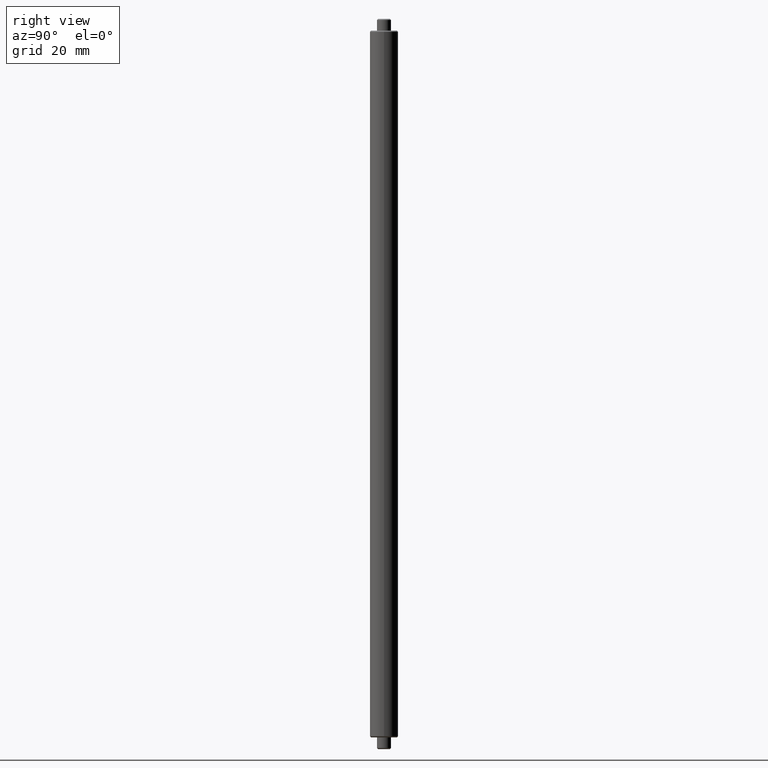
[diagram: clean part render]
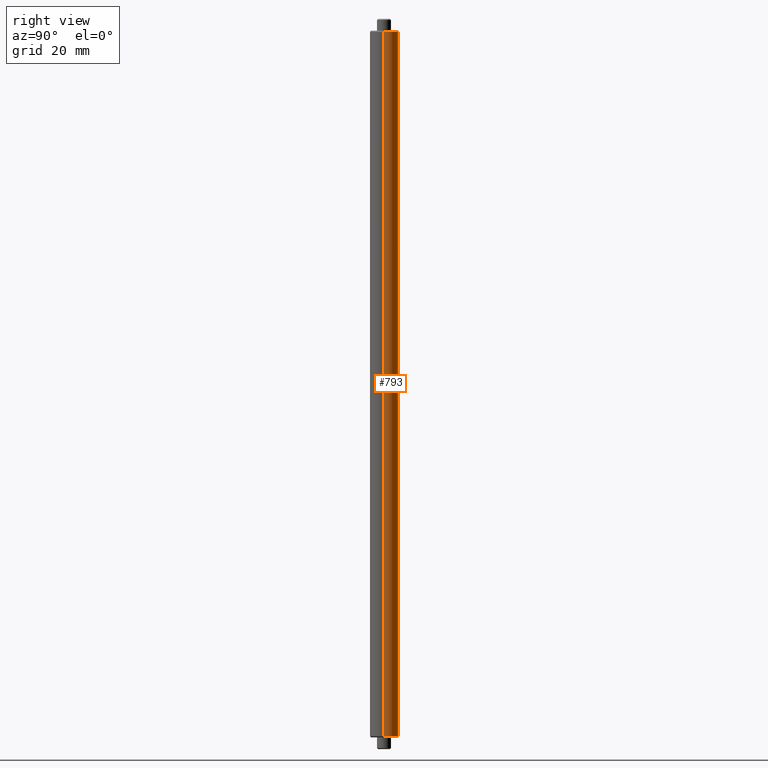
[diagram: same view with one face highlighted and labeled with its STEP entity id]
A machine part, right view. The second image highlights one B-rep face of the part: STEP entity #793.
In plain terms, the highlighted cylindrical surface (edge-blend (fillet) strip) has radius 3 mm, axis along (-0, -0, -1).
Its self-contained STEP definition (entity closure, byte-faithful):
#37 = CIRCLE ( 'NONE', #467, 3.000000000000000444 ) ;
#83 = DIRECTION ( 'NONE',  ( -1.000000000000000000, 0.000000000000000000, 0.000000000000000000 ) ) ;
#85 = DIRECTION ( 'NONE',  ( -0.000000000000000000, -0.000000000000000000, -1.000000000000000000 ) ) ;
#117 = DIRECTION ( 'NONE',  ( 1.000000000000000000, 0.000000000000000000, 0.000000000000000000 ) ) ;
#135 = LINE ( 'NONE', #255, #569 ) ;
#151 = VERTEX_POINT ( 'NONE', #1049 ) ;
#173 = ORIENTED_EDGE ( 'NONE', *, *, #575, .T. ) ;
#186 = CARTESIAN_POINT ( 'NONE',  ( -3.000000000000000444, 0.000000000000000000, 74.74999999999998579 ) ) ;
#198 = ORIENTED_EDGE ( 'NONE', *, *, #1281, .T. ) ;
#255 = CARTESIAN_POINT ( 'NONE',  ( -3.000000000000000444, 0.000000000000000000, 75.00000000000000000 ) ) ;
#274 = ORIENTED_EDGE ( 'NONE', *, *, #1577, .F. ) ;
#362 = LINE ( 'NONE', #1236, #1106 ) ;
#430 = VERTEX_POINT ( 'NONE', #186 ) ;
#450 = VERTEX_POINT ( 'NONE', #1108 ) ;
#467 = AXIS2_PLACEMENT_3D ( 'NONE', #1048, #916, #1551 ) ;
#488 = DIRECTION ( 'NONE',  ( 0.000000000000000000, 0.000000000000000000, -1.000000000000000000 ) ) ;
#510 = VERTEX_POINT ( 'NONE', #669 ) ;
#569 = VECTOR ( 'NONE', #1405, 1000.000000000000000 ) ;
#575 = EDGE_CURVE ( 'NONE', #510, #450, #37, .T. ) ;
#617 = CIRCLE ( 'NONE', #1262, 3.000000000000000444 ) ;
#669 = CARTESIAN_POINT ( 'NONE',  ( 3.000000000000000444, 0.000000000000000000, -74.75000000000002842 ) ) ;
#731 = DIRECTION ( 'NONE',  ( -0.000000000000000000, -0.000000000000000000, -1.000000000000000000 ) ) ;
#777 = CYLINDRICAL_SURFACE ( 'NONE', #950, 3.000000000000000444 ) ;
#793 = ADVANCED_FACE ( 'NONE', ( #822 ), #777, .T. ) ;
#822 = FACE_OUTER_BOUND ( 'NONE', #1554, .T. ) ;
#916 = DIRECTION ( 'NONE',  ( -0.000000000000000000, -0.000000000000000000, 1.000000000000000000 ) ) ;
#950 = AXIS2_PLACEMENT_3D ( 'NONE', #1100, #731, #83 ) ;
#1048 = CARTESIAN_POINT ( 'NONE',  ( 0.000000000000000000, 0.000000000000000000, -74.75000000000002842 ) ) ;
#1049 = CARTESIAN_POINT ( 'NONE',  ( 3.000000000000000444, 3.673940397442060361E-16, 74.74999999999998579 ) ) ;
#1100 = CARTESIAN_POINT ( 'NONE',  ( 0.000000000000000000, 0.000000000000000000, 75.00000000000000000 ) ) ;
#1106 = VECTOR ( 'NONE', #85, 1000.000000000000000 ) ;
#1108 = CARTESIAN_POINT ( 'NONE',  ( -3.000000000000000444, 3.673940397442060361E-16, -74.75000000000002842 ) ) ;
#1236 = CARTESIAN_POINT ( 'NONE',  ( 3.000000000000000444, 3.673940397442060361E-16, 75.00000000000000000 ) ) ;
#1262 = AXIS2_PLACEMENT_3D ( 'NONE', #1271, #488, #117 ) ;
#1271 = CARTESIAN_POINT ( 'NONE',  ( 0.000000000000000000, 0.000000000000000000, 74.74999999999998579 ) ) ;
#1281 = EDGE_CURVE ( 'NONE', #151, #510, #362, .T. ) ;
#1405 = DIRECTION ( 'NONE',  ( -0.000000000000000000, -0.000000000000000000, -1.000000000000000000 ) ) ;
#1527 = ORIENTED_EDGE ( 'NONE', *, *, #1555, .T. ) ;
#1551 = DIRECTION ( 'NONE',  ( 1.000000000000000000, 0.000000000000000000, 0.000000000000000000 ) ) ;
#1554 = EDGE_LOOP ( 'NONE', ( #1527, #198, #173, #274 ) ) ;
#1555 = EDGE_CURVE ( 'NONE', #430, #151, #617, .T. ) ;
#1577 = EDGE_CURVE ( 'NONE', #430, #450, #135, .T. ) ;